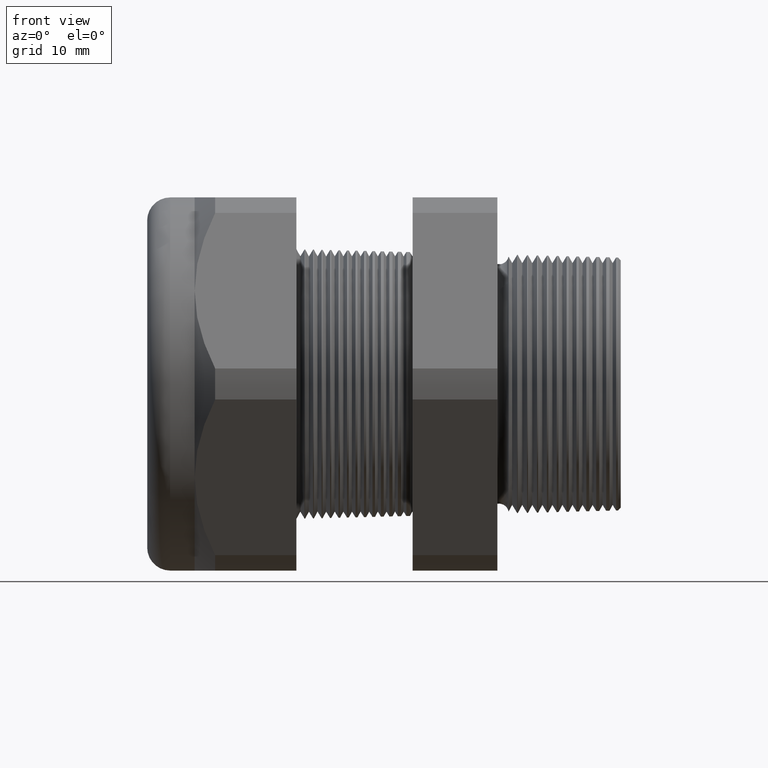
[diagram: clean part render]
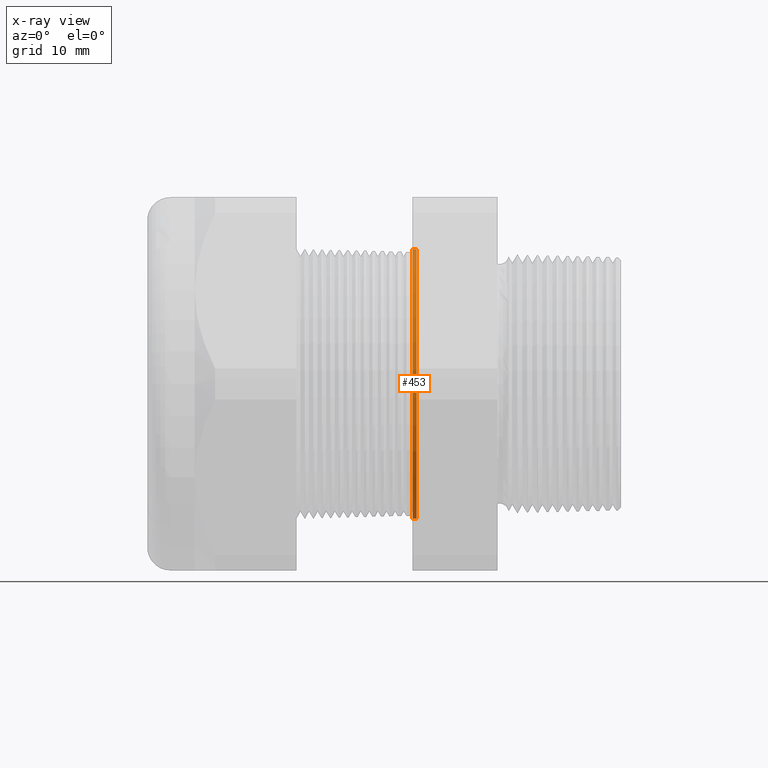
[diagram: x-ray — body ghosted, one internal face saturated and labeled with its STEP entity id]
A machine part, front view, then the same camera in x-ray: the body is ghosted and one INTERNAL B-rep face — a face not visible from any outside direction — is saturated and labeled: STEP entity #453.
In plain terms, the highlighted conical surface has half-angle 1.5 deg.
Its self-contained STEP definition (entity closure, byte-faithful):
#453 = ADVANCED_FACE ( 'NONE', ( #2282 ), #2279, .F. ) ;
#454 = EDGE_LOOP ( 'NONE', ( #455, #461, #467, #472 ) ) ;
#455 = ORIENTED_EDGE ( 'NONE', *, *, #458, .T. ) ;
#458 = EDGE_CURVE ( 'NONE', #459, #460, #2338, .T. ) ;
#459 = VERTEX_POINT ( 'NONE', #2333 ) ;
#460 = VERTEX_POINT ( 'NONE', #2331 ) ;
#461 = ORIENTED_EDGE ( 'NONE', *, *, #462, .T. ) ;
#462 = EDGE_CURVE ( 'NONE', #460, #464, #2330, .T. ) ;
#464 = VERTEX_POINT ( 'NONE', #2326 ) ;
#467 = ORIENTED_EDGE ( 'NONE', *, *, #469, .T. ) ;
#469 = EDGE_CURVE ( 'NONE', #464, #470, #2320, .T. ) ;
#470 = VERTEX_POINT ( 'NONE', #2315 ) ;
#472 = ORIENTED_EDGE ( 'NONE', *, *, #474, .F. ) ;
#474 = EDGE_CURVE ( 'NONE', #459, #470, #2370, .T. ) ;
#2276 = DIRECTION ( 'NONE',  ( 0.0000000000000000000, 0.0000000000000000000, 1.000000000000000000 ) ) ;
#2277 = DIRECTION ( 'NONE',  ( -1.000000000000000000, 0.0000000000000000000, 0.0000000000000000000 ) ) ;
#2278 = AXIS2_PLACEMENT_3D ( 'NONE', #2281, #2277, #2276 ) ;
#2279 = CONICAL_SURFACE ( 'NONE', #2278, 0.4692443365923945100, 0.02617993877990797800 ) ;
#2281 = CARTESIAN_POINT ( 'NONE',  ( -0.5914573393463203900, 0.0000000000000000000, 0.0000000000000000000 ) ) ;
#2282 = FACE_OUTER_BOUND ( 'NONE', #454, .T. ) ;
#2315 = CARTESIAN_POINT ( 'NONE',  ( -0.6052755905511809600, 0.0000000000000000000, 0.4696061802346682100 ) ) ;
#2316 = DIRECTION ( 'NONE',  ( 0.0000000000000000000, 0.0000000000000000000, 1.000000000000000000 ) ) ;
#2317 = DIRECTION ( 'NONE',  ( -1.000000000000000000, 0.0000000000000000000, 0.0000000000000000000 ) ) ;
#2318 = CARTESIAN_POINT ( 'NONE',  ( -0.6052755905511809600, 0.0000000000000000000, 0.0000000000000000000 ) ) ;
#2319 = AXIS2_PLACEMENT_3D ( 'NONE', #2318, #2317, #2316 ) ;
#2320 = CIRCLE ( 'NONE', #2319, 0.4696061802346682700 ) ;
#2326 = CARTESIAN_POINT ( 'NONE',  ( -0.6052755905511809600, 5.751017054842014700E-017, -0.4696061802346682100 ) ) ;
#2327 = DIRECTION ( 'NONE',  ( -0.9996573249755573700, 3.205751595667405400E-018, -0.02617694830786618600 ) ) ;
#2328 = VECTOR ( 'NONE', #2327, 39.37007874015748100 ) ;
#2329 = CARTESIAN_POINT ( 'NONE',  ( -0.5914573393463203900, 5.746585748258992000E-017, -0.4692443365923945100 ) ) ;
#2330 = LINE ( 'NONE', #2329, #2328 ) ;
#2331 = CARTESIAN_POINT ( 'NONE',  ( -0.5914573393463203900, 0.0000000000000000000, -0.4692443365923945100 ) ) ;
#2333 = CARTESIAN_POINT ( 'NONE',  ( -0.5914573393463203900, 5.746585748258992000E-017, 0.4692443365923945100 ) ) ;
#2334 = DIRECTION ( 'NONE',  ( 0.0000000000000000000, 0.0000000000000000000, -1.000000000000000000 ) ) ;
#2335 = DIRECTION ( 'NONE',  ( 1.000000000000000000, 0.0000000000000000000, 0.0000000000000000000 ) ) ;
#2336 = CARTESIAN_POINT ( 'NONE',  ( -0.5914573393463203900, 0.0000000000000000000, 0.0000000000000000000 ) ) ;
#2337 = AXIS2_PLACEMENT_3D ( 'NONE', #2336, #2335, #2334 ) ;
#2338 = CIRCLE ( 'NONE', #2337, 0.4692443365923945100 ) ;
#2367 = DIRECTION ( 'NONE',  ( -0.9996573249755573700, 0.0000000000000000000, 0.02617694830786618600 ) ) ;
#2368 = VECTOR ( 'NONE', #2367, 39.37007874015748100 ) ;
#2369 = CARTESIAN_POINT ( 'NONE',  ( -0.5914573393463203900, 0.0000000000000000000, 0.4692443365923945100 ) ) ;
#2370 = LINE ( 'NONE', #2369, #2368 ) ;